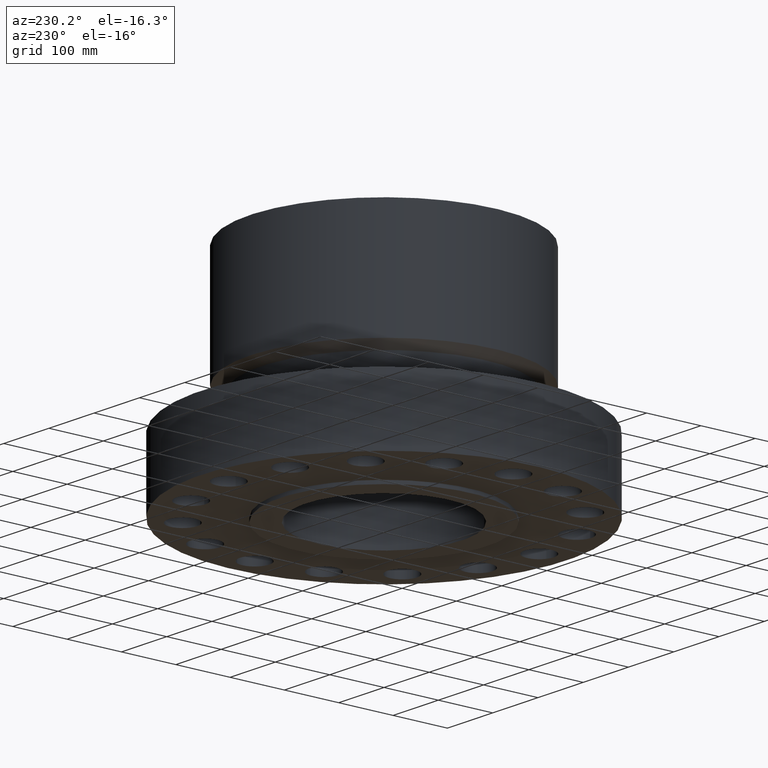
[diagram: clean part render]
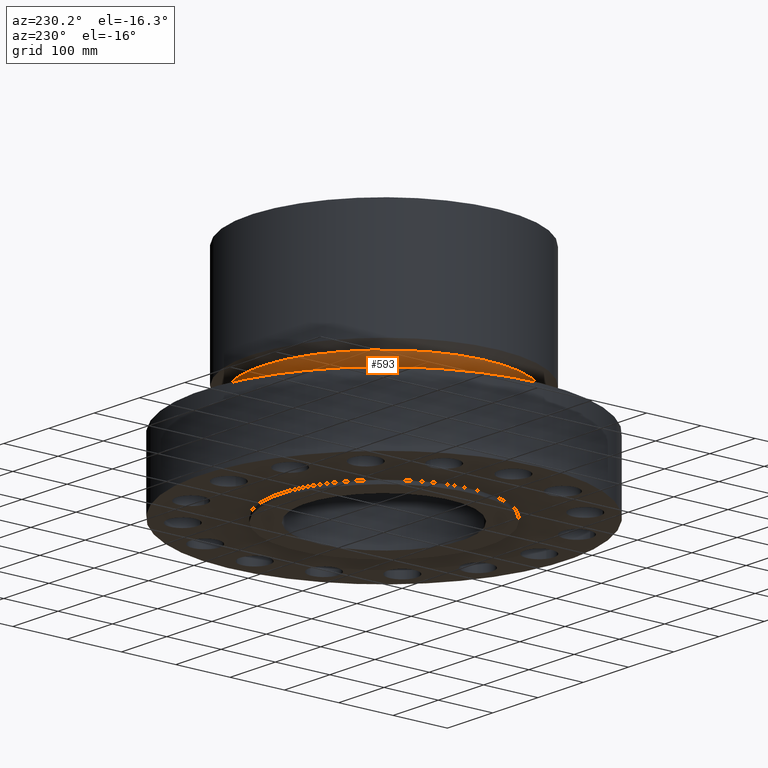
[diagram: same view with one face highlighted and labeled with its STEP entity id]
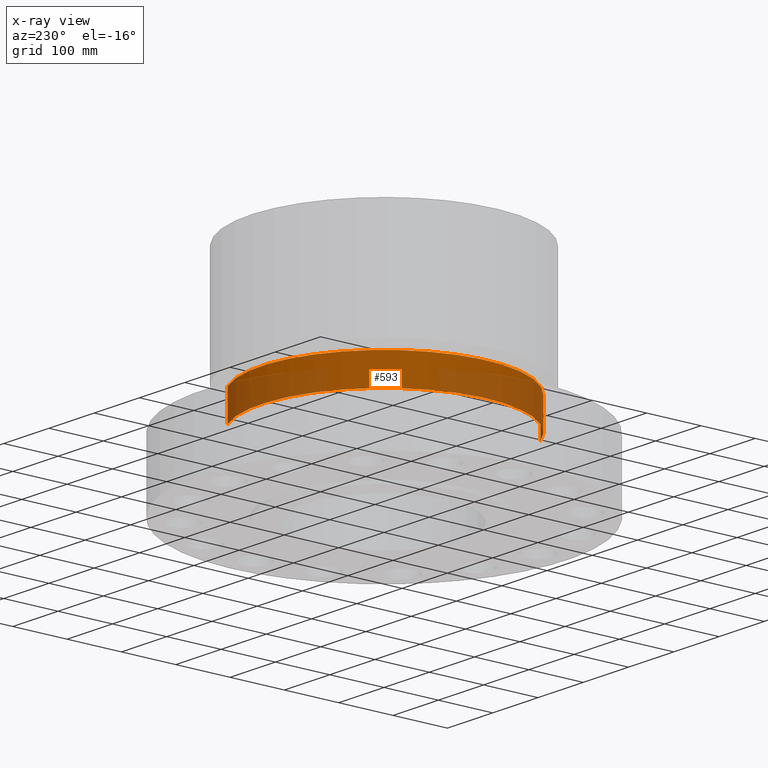
[diagram: x-ray of the same camera — body ghosted, the highlighted face saturated]
A machine part, auxiliary view. The second image highlights one B-rep face of the part: STEP entity #593.
The next image is the same camera in x-ray: the body ghosted, the highlighted face saturated — about 47% of this face is hidden behind the body in this view.
In plain terms, the highlighted cylindrical surface (partial cylindrical patch) has radius 225.425 mm, axis along (0, 0, -1).
Its self-contained STEP definition (entity closure, byte-faithful):
#541=AXIS2_PLACEMENT_3D('Circle Axis2P3D',#539,#540,$) ;
#554=AXIS2_PLACEMENT_3D('Cylinder Axis2P3D',#551,#552,#553) ;
#584=AXIS2_PLACEMENT_3D('Circle Axis2P3D',#582,#583,$) ;
#517=CARTESIAN_POINT('Vertex',(4.25490165513,7.78854523681,4.92098076213)) ;
#524=CARTESIAN_POINT('Vertex',(-4.25490165513,-7.78854523681,4.92098076213)) ;
#539=CARTESIAN_POINT('Axis2P3D Location',(0.,0.,4.92098076213)) ;
#551=CARTESIAN_POINT('Axis2P3D Location',(0.,0.,7.75000000003)) ;
#556=CARTESIAN_POINT('Line Origine',(4.25490165513,7.78854523681,6.02549038108)) ;
#560=CARTESIAN_POINT('Vertex',(4.25490165513,7.78854523681,7.13000000003)) ;
#567=CARTESIAN_POINT('Vertex',(-4.25490165513,-7.78854523681,7.13000000003)) ;
#570=CARTESIAN_POINT('Line Origine',(-4.25490165513,-7.78854523681,6.02549038108)) ;
#582=CARTESIAN_POINT('Axis2P3D Location',(0.,0.,7.13000000003)) ;
#540=DIRECTION('Axis2P3D Direction',(-0.,0.,0.0393700787402)) ;
#552=DIRECTION('Axis2P3D Direction',(0.,0.,-0.0393700787402)) ;
#553=DIRECTION('Axis2P3D XDirection',(-0.0188750212049,-0.0345504945626,0.)) ;
#557=DIRECTION('Vector Direction',(0.,0.,-0.0393700787402)) ;
#571=DIRECTION('Vector Direction',(0.,0.,-0.0393700787402)) ;
#583=DIRECTION('Axis2P3D Direction',(0.,0.,-0.0393700787402)) ;
#558=VECTOR('Line Direction',#557,0.0393700787402) ;
#572=VECTOR('Line Direction',#571,0.0393700787402) ;
#588=ORIENTED_EDGE('',*,*,#543,.F.) ;
#589=ORIENTED_EDGE('',*,*,#574,.T.) ;
#590=ORIENTED_EDGE('',*,*,#586,.T.) ;
#591=ORIENTED_EDGE('',*,*,#562,.F.) ;
#593=ADVANCED_FACE('PartBody',(#592),#555,.T.) ;
#542=CIRCLE('generated circle',#541,8.87500000004) ;
#585=CIRCLE('generated circle',#584,8.87500000004) ;
#555=CYLINDRICAL_SURFACE('generated cylinder',#554,8.87500000004) ;
#543=EDGE_CURVE('',#525,#518,#542,.F.) ;
#562=EDGE_CURVE('',#518,#561,#559,.F.) ;
#574=EDGE_CURVE('',#525,#568,#573,.F.) ;
#586=EDGE_CURVE('',#568,#561,#585,.T.) ;
#587=EDGE_LOOP('',(#588,#589,#590,#591)) ;
#592=FACE_OUTER_BOUND('',#587,.T.) ;
#559=LINE('Line',#556,#558) ;
#573=LINE('Line',#570,#572) ;
#518=VERTEX_POINT('',#517) ;
#525=VERTEX_POINT('',#524) ;
#561=VERTEX_POINT('',#560) ;
#568=VERTEX_POINT('',#567) ;